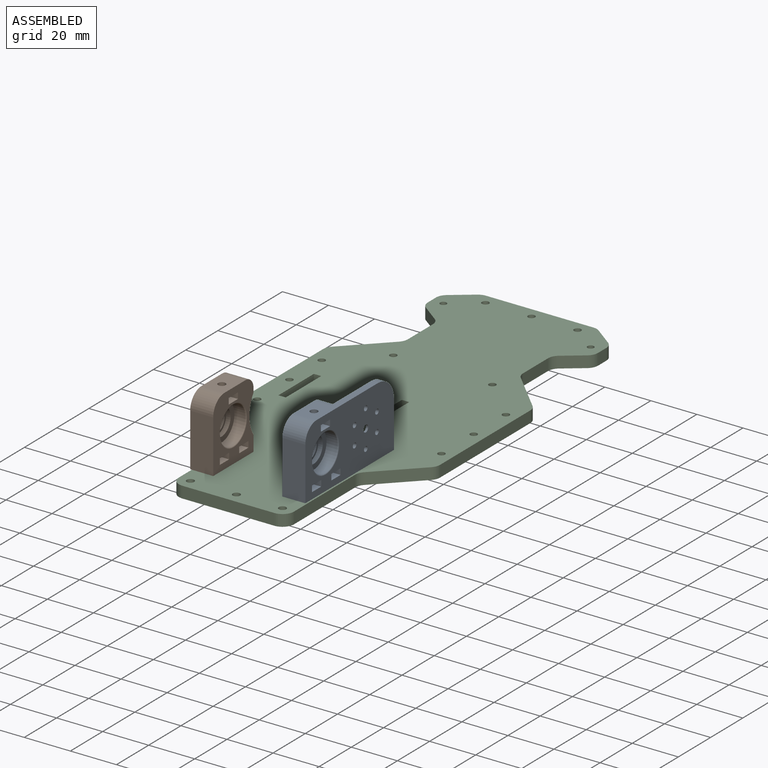
[diagram: assembled view]
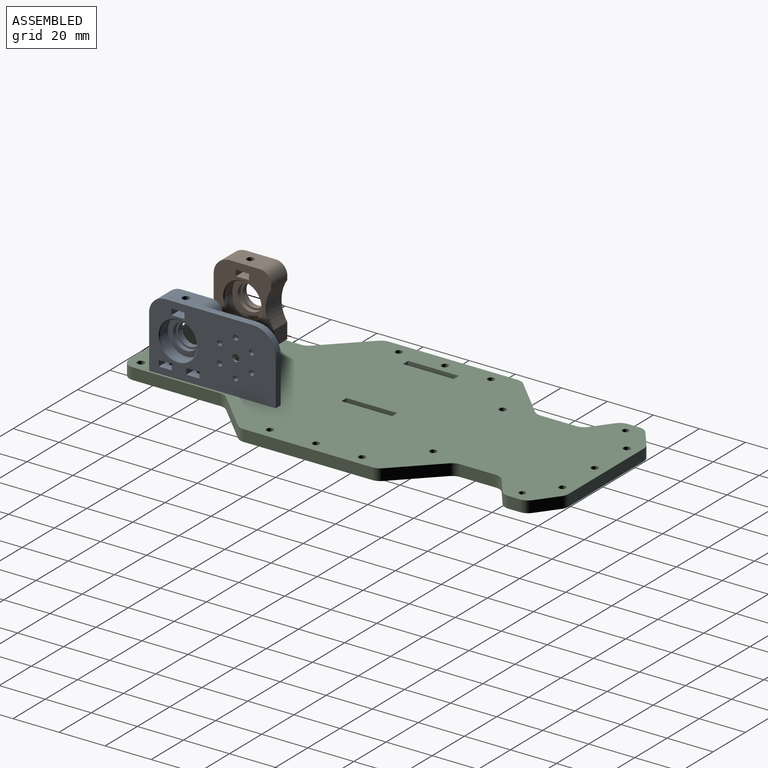
[diagram: assembled view, second angle]
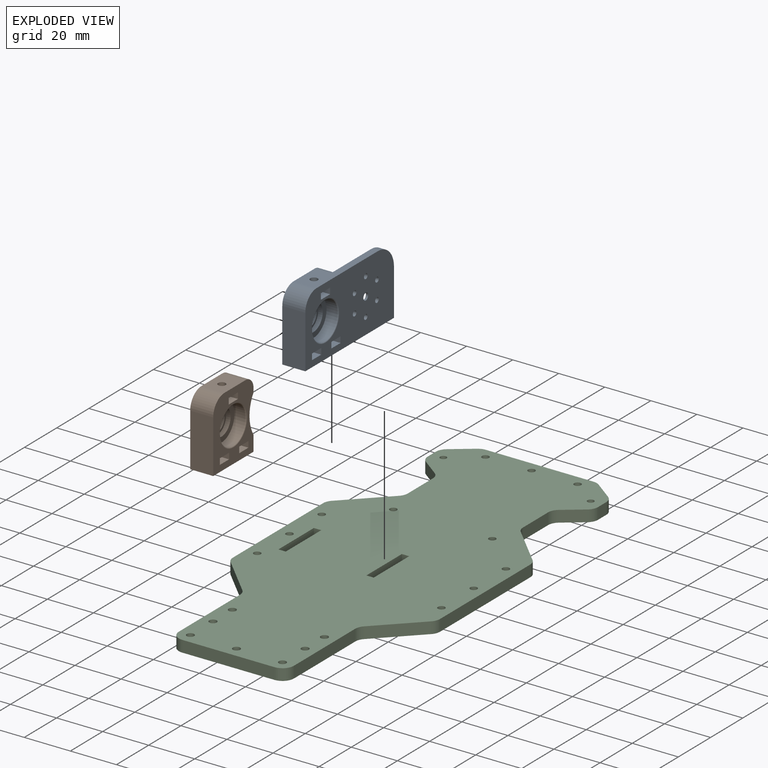
[diagram: exploded view]
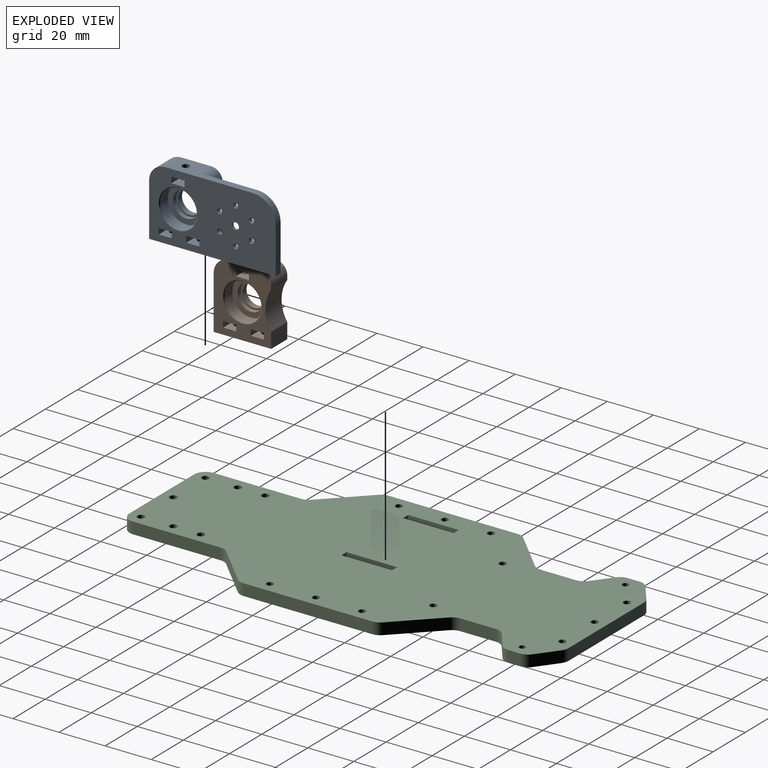
[diagram: exploded view, second angle]
ASSEMBLY  parts=3 mates=2
PART A: 55 faces, bbox 55x10x30 mm
  f0: plane 55x30mm, normal (0,-1,0), area 1314mm2, adj f3,f4,f5,f6,f9,f10,f11,f12
  f1: cylinder r=1.6mm len=3.2mm, axis (0,0,-1), area 28.1mm2, adj f5,f43
  f2: plane 35x30mm, normal (0,1,0), area 421.2mm2, adj f3,f4,f5,f15,f17,f20,f21,f22
  f3: plane 20x3mm, normal (1,0,0), area 60mm2, adj f0,f2,f5,f17
  f4: plane 38x10mm, normal (0,0,1), area 197mm2, adj f0,f2,f17,f23,f25,f26,f27
  f5: plane 55x10mm, normal (0,0,-1), area 323.9mm2, adj f0,f1,f2,f3,f18,f21,f23,f35
  f6: cylinder r=1.5mm len=3mm, axis (0,1,0), area 9.4mm2, adj f0,f8
  f7: cylinder r=3.4mm len=6.8mm, axis (0,1,0), area 21.4mm2, adj f8,f16
  f8: plane 6.8x6.8mm, normal (0,1,0), area 29.2mm2, adj f6,f7
  f9: cylinder r=1.1mm len=2.2mm, axis (0,1,0), area 13.8mm2, adj f0,f16
  f10: cylinder r=1.1mm len=2.2mm, axis (0,1,0), area 13.8mm2, adj f0,f16
  f11: cylinder r=1.1mm len=2.2mm, axis (0,1,0), area 13.8mm2, adj f0,f16
  f12: cylinder r=1.1mm len=2.2mm, axis (0,1,0), area 13.8mm2, adj f0,f16
  f13: cylinder r=1.1mm len=2.2mm, axis (0,1,0), area 13.8mm2, adj f0,f16
  f14: cylinder r=1.1mm len=2.2mm, axis (0,1,0), area 13.8mm2, adj f0,f16
  f15: cylinder r=12.5mm len=25mm, axis (0,1,0), area 78.5mm2, adj f2,f16
  f16: plane 25x25mm, normal (0,1,0), area 431.7mm2, adj f7,f9,f10,f11,f12,f13,f14,f15
  f17: cylinder r=10mm len=10mm, axis (0,-1,0), area 47.1mm2, adj f0,f2,f3,f4
  f18: plane 23x10mm, normal (-1,0,0), area 230mm2, adj f0,f5,f23,f26
  f19: cylinder r=8.05mm len=16.1mm, axis (0,1,0), area 237.7mm2, adj f24,f54
  f20: cylinder r=15mm len=16.58mm, axis (0,-1,0), area 123mm2, adj f2,f21,f22,f23
  f21: plane 7x6.71mm, normal (1,0,0), area 47mm2, adj f2,f5,f20,f23
  f22: plane 7x1.71mm, normal (1,0,0), area 12mm2, adj f2,f20,f23,f25
  f23: plane 30x25mm, normal (0,1,0), area 611.8mm2, adj f4,f5,f18,f20,f21,f22,f25,f26
  f24: plane 16.1x16.1mm, normal (0,-1,0), area 99.7mm2, adj f19,f50
  f25: cylinder r=5mm len=7mm, axis (0,-1,0), area 55mm2, adj f2,f4,f22,f23
  f26: cylinder r=7mm len=10mm, axis (0,1,0), area 110mm2, adj f0,f4,f18,f23
  f27: cylinder r=1.6mm len=3.2mm, axis (0,0,1), area 30.2mm2, adj f4,f29
  f28: plane 8.5x5.7mm, normal (0,0,1), area 40.4mm2, adj f0,f30,f31,f32,f34
  f29: plane 8.5x5.7mm, normal (0,0,-1), area 40.4mm2, adj f0,f27,f30,f31,f32
  f30: plane 8.5x2.6mm, normal (-1,0,0), area 22.1mm2, adj f0,f28,f29,f32
  f31: plane 8.5x2.6mm, normal (1,0,0), area 22.1mm2, adj f0,f28,f29,f32
  f32: plane 5.7x2.6mm, normal (0,-1,0), area 14.8mm2, adj f28,f29,f30,f31
  f33: plane 3.2x3.2mm, normal (0,0,1), area 8mm2, adj f34
  f34: cylinder r=1.6mm len=3.2mm, axis (0,0,1), area 4mm2, adj f28,f33
  f35: cylinder r=1.6mm len=3.2mm, axis (0,0,-1), area 28.1mm2, adj f5,f37
  f36: plane 9x5.7mm, normal (0,0,-1), area 43.3mm2, adj f0,f38,f39,f40,f42
  f37: plane 9x5.7mm, normal (0,0,1), area 43.3mm2, adj f0,f35,f38,f39,f40
  f38: plane 9x2.6mm, normal (1,0,0), area 23.4mm2, adj f0,f36,f37,f40
  f39: plane 9x2.6mm, normal (-1,0,0), area 23.4mm2, adj f0,f36,f37,f40
  f40: plane 5.7x2.6mm, normal (0,-1,0), area 14.8mm2, adj f36,f37,f38,f39
  f41: plane 3.2x3.2mm, normal (0,0,-1), area 8mm2, adj f42
  f42: cylinder r=1.6mm len=3.2mm, axis (0,0,-1), area 16.1mm2, adj f36,f41
  f43: plane 9x5.7mm, normal (0,0,1), area 43.3mm2, adj f0,f1,f45,f46,f47
  f44: plane 9x5.7mm, normal (0,0,-1), area 43.3mm2, adj f0,f45,f46,f47,f49
  f45: plane 9x2.6mm, normal (-1,0,0), area 23.4mm2, adj f0,f43,f44,f47
  f46: plane 9x2.6mm, normal (1,0,0), area 23.4mm2, adj f0,f43,f44,f47
  f47: plane 5.7x2.6mm, normal (0,-1,0), area 14.8mm2, adj f43,f44,f45,f46
  f48: plane 3.2x3.2mm, normal (0,0,-1), area 8mm2, adj f49
  f49: cylinder r=1.6mm len=3.2mm, axis (0,0,-1), area 16.1mm2, adj f44,f48
  f50: cylinder r=5.75mm len=11.5mm, axis (0,-1,0), area 72.3mm2, adj f24,f51
  f51: plane 11.5x11.5mm, normal (0,-1,0), area 26.1mm2, adj f50,f52
  f52: cylinder r=4.98mm len=9.95mm, axis (0,1,0), area 71.9mm2, adj f51,f53
  f53: torus R=5.47mm, axis (0,1,0), area 25.4mm2, adj f23,f52
  f54: torus R=8.55mm, axis (0,-1,0), area 40.6mm2, adj f0,f19
PART B: 41 faces, bbox 25x10x30 mm
  f0: plane 30x25mm, normal (0,-1,0), area 431.9mm2, adj f2,f3,f4,f6,f7,f8,f11,f12
  f1: cylinder r=1.6mm len=3.2mm, axis (0,0,-1), area 28.1mm2, adj f3,f29
  f2: plane 13x10mm, normal (0,0,1), area 122mm2, adj f0,f9,f11,f12,f13
  f3: plane 25x10mm, normal (0,0,-1), area 233.9mm2, adj f0,f1,f4,f7,f9,f21
  f4: plane 23x10mm, normal (-1,0,0), area 230mm2, adj f0,f3,f9,f12
  f5: cylinder r=8.05mm len=16.1mm, axis (0,1,0), area 237.7mm2, adj f10,f40
  f6: cylinder r=15mm len=16.58mm, axis (0,-1,0), area 175.7mm2, adj f0,f7,f8,f9
  f7: plane 10x6.71mm, normal (1,0,0), area 67.1mm2, adj f0,f3,f6,f9
  f8: plane 10x1.71mm, normal (1,0,0), area 17.1mm2, adj f0,f6,f9,f11
  f9: plane 30x25mm, normal (0,1,0), area 611.8mm2, adj f2,f3,f4,f6,f7,f8,f11,f12
  f10: plane 16.1x16.1mm, normal (0,-1,0), area 99.7mm2, adj f5,f36
  f11: cylinder r=5mm len=10mm, axis (0,-1,0), area 78.5mm2, adj f0,f2,f8,f9
  f12: cylinder r=7mm len=10mm, axis (0,1,0), area 110mm2, adj f0,f2,f4,f9
  f13: cylinder r=1.6mm len=3.2mm, axis (0,0,1), area 30.2mm2, adj f2,f15
  f14: plane 8.5x5.7mm, normal (0,0,1), area 40.4mm2, adj f0,f16,f17,f18,f20
  f15: plane 8.5x5.7mm, normal (0,0,-1), area 40.4mm2, adj f0,f13,f16,f17,f18
  f16: plane 8.5x2.6mm, normal (-1,0,0), area 22.1mm2, adj f0,f14,f15,f18
  f17: plane 8.5x2.6mm, normal (1,0,0), area 22.1mm2, adj f0,f14,f15,f18
  f18: plane 5.7x2.6mm, normal (0,-1,0), area 14.8mm2, adj f14,f15,f16,f17
  f19: plane 3.2x3.2mm, normal (0,0,1), area 8mm2, adj f20
  f20: cylinder r=1.6mm len=3.2mm, axis (0,0,1), area 4mm2, adj f14,f19
  f21: cylinder r=1.6mm len=3.2mm, axis (0,0,-1), area 28.1mm2, adj f3,f23
  f22: plane 9x5.7mm, normal (0,0,-1), area 43.3mm2, adj f0,f24,f25,f26,f28
  f23: plane 9x5.7mm, normal (0,0,1), area 43.3mm2, adj f0,f21,f24,f25,f26
  f24: plane 9x2.6mm, normal (1,0,0), area 23.4mm2, adj f0,f22,f23,f26
  f25: plane 9x2.6mm, normal (-1,0,0), area 23.4mm2, adj f0,f22,f23,f26
  f26: plane 5.7x2.6mm, normal (0,-1,0), area 14.8mm2, adj f22,f23,f24,f25
  f27: plane 3.2x3.2mm, normal (0,0,-1), area 8mm2, adj f28
  f28: cylinder r=1.6mm len=3.2mm, axis (0,0,-1), area 16.1mm2, adj f22,f27
  f29: plane 9x5.7mm, normal (0,0,1), area 43.3mm2, adj f0,f1,f31,f32,f33
  f30: plane 9x5.7mm, normal (0,0,-1), area 43.3mm2, adj f0,f31,f32,f33,f35
  f31: plane 9x2.6mm, normal (-1,0,0), area 23.4mm2, adj f0,f29,f30,f33
  f32: plane 9x2.6mm, normal (1,0,0), area 23.4mm2, adj f0,f29,f30,f33
  f33: plane 5.7x2.6mm, normal (0,-1,0), area 14.8mm2, adj f29,f30,f31,f32
  f34: plane 3.2x3.2mm, normal (0,0,-1), area 8mm2, adj f35
  f35: cylinder r=1.6mm len=3.2mm, axis (0,0,-1), area 16.1mm2, adj f30,f34
  f36: cylinder r=5.75mm len=11.5mm, axis (0,-1,0), area 72.3mm2, adj f10,f37
  f37: plane 11.5x11.5mm, normal (0,-1,0), area 26.1mm2, adj f36,f38
  f38: cylinder r=4.98mm len=9.95mm, axis (0,1,0), area 71.9mm2, adj f37,f39
  f39: torus R=5.47mm, axis (0,1,0), area 25.4mm2, adj f9,f38
  f40: torus R=8.55mm, axis (0,-1,0), area 40.6mm2, adj f0,f5
PART C: 66 faces, bbox 90x193x5 mm
  f0: plane 22x5mm, normal (1,0,0), area 110mm2, adj f1,f63,f64,f65
  f1: plane 5x3.2mm, normal (0,-1,0), area 16mm2, adj f0,f2,f64,f65
  f2: plane 22x5mm, normal (-1,0,0), area 110mm2, adj f1,f63,f64,f65
  f3: cylinder r=5mm len=5mm, axis (0,0,-1), area 19.6mm2, adj f4,f61,f64,f65
  f4: plane 17.07x17.07mm, normal (0.71,-0.71,0), area 120.7mm2, adj f3,f5,f64,f65
  f5: cylinder r=5mm len=5mm, axis (0,0,-1), area 19.6mm2, adj f4,f6,f64,f65
  f6: plane 55.86x5mm, normal (1,0,0), area 279.3mm2, adj f5,f7,f64,f65
  f7: cylinder r=5mm len=5mm, axis (0,0,-1), area 19.6mm2, adj f6,f8,f64,f65
  f8: plane 17.07x17.07mm, normal (0.71,0.71,0), area 120.7mm2, adj f7,f9,f64,f65
  f9: cylinder r=5mm len=5mm, axis (0,0,-1), area 19.6mm2, adj f8,f10,f64,f65
  f10: plane 15.43x5mm, normal (1,0,0), area 77.1mm2, adj f9,f11,f64,f65
  f11: cylinder r=5mm len=5mm, axis (0,0,-1), area 23.2mm2, adj f10,f12,f64,f65
  f12: plane 8x6mm, normal (0.6,-0.8,0), area 50mm2, adj f11,f13,f64,f65
  f13: cylinder r=5mm len=5mm, axis (0,0,-1), area 23.2mm2, adj f12,f14,f64,f65
  f14: plane 5x5mm, normal (1,0,0), area 25mm2, adj f13,f15,f64,f65
  f15: cylinder r=5mm len=5mm, axis (0,0,-1), area 23.2mm2, adj f14,f16,f64,f65
  f16: plane 8.67x6.5mm, normal (0.6,0.8,0), area 54.2mm2, adj f15,f17,f64,f65
  f17: cylinder r=5mm len=5mm, axis (0,0,-1), area 16.1mm2, adj f16,f18,f64,f65
  f18: plane 46.67x5mm, normal (0,1,0), area 233.3mm2, adj f17,f19,f64,f65
  f19: cylinder r=5mm len=5mm, axis (0,0,-1), area 16.1mm2, adj f18,f20,f64,f65
  f20: plane 8.67x6.5mm, normal (-0.6,0.8,0), area 54.2mm2, adj f19,f21,f64,f65
  f21: cylinder r=5mm len=5mm, axis (0,0,-1), area 23.2mm2, adj f20,f22,f64,f65
  f22: plane 5x5mm, normal (-1,0,0), area 25mm2, adj f21,f23,f64,f65
  f23: cylinder r=5mm len=5mm, axis (0,0,-1), area 23.2mm2, adj f22,f24,f64,f65
  f24: plane 8x6mm, normal (-0.6,-0.8,0), area 50mm2, adj f23,f25,f64,f65
  f25: cylinder r=5mm len=5mm, axis (0,0,-1), area 23.2mm2, adj f24,f26,f64,f65
  f26: plane 15.43x5mm, normal (-1,0,0), area 77.1mm2, adj f25,f27,f64,f65
  f27: cylinder r=5mm len=5mm, axis (0,0,-1), area 19.6mm2, adj f26,f28,f64,f65
  f28: plane 17.07x17.07mm, normal (-0.71,0.71,0), area 120.7mm2, adj f27,f29,f64,f65
  f29: cylinder r=5mm len=5mm, axis (0,0,-1), area 19.6mm2, adj f28,f30,f64,f65
  f30: plane 55.86x5mm, normal (-1,0,0), area 279.3mm2, adj f29,f31,f64,f65
  f31: cylinder r=5mm len=5mm, axis (0,0,-1), area 19.6mm2, adj f30,f32,f64,f65
  f32: plane 17.07x17.07mm, normal (-0.71,-0.71,0), area 120.7mm2, adj f31,f33,f64,f65
  f33: cylinder r=5mm len=5mm, axis (0,0,-1), area 19.6mm2, adj f32,f34,f64,f65
  f34: plane 37.93x5mm, normal (-1,0,0), area 189.6mm2, adj f33,f35,f64,f65
  f35: cylinder r=5mm len=5mm, axis (0,0,-1), area 39.3mm2, adj f34,f36,f64,f65
  f36: plane 40x5mm, normal (0,-1,0), area 200mm2, adj f35,f37,f64,f65
  f37: cylinder r=5mm len=5mm, axis (0,0,-1), area 39.3mm2, adj f36,f61,f64,f65
  f38: plane 22x5mm, normal (1,0,0), area 110mm2, adj f39,f62,f64,f65
  f39: plane 5x3.2mm, normal (0,-1,0), area 16mm2, adj f38,f40,f64,f65
  f40: plane 22x5mm, normal (-1,0,0), area 110mm2, adj f39,f62,f64,f65
  f41: cylinder r=1.6mm len=5mm, axis (0,0,-1), area 50.3mm2, adj f64,f65
  f42: cylinder r=1.5mm len=5mm, axis (0,0,-1), area 47.1mm2, adj f64,f65
  f43: cylinder r=1.5mm len=5mm, axis (0,0,-1), area 47.1mm2, adj f64,f65
  f44: cylinder r=1.5mm len=5mm, axis (0,0,-1), area 47.1mm2, adj f64,f65
  f45: cylinder r=1.5mm len=5mm, axis (0,0,-1), area 47.1mm2, adj f64,f65
  f46: cylinder r=1.5mm len=5mm, axis (0,0,-1), area 47.1mm2, adj f64,f65
  f47: cylinder r=1.5mm len=5mm, axis (0,0,-1), area 47.1mm2, adj f64,f65
  f48: cylinder r=1.5mm len=5mm, axis (0,0,-1), area 47.1mm2, adj f64,f65
  f49: cylinder r=1.38mm len=5mm, axis (0,0,-1), area 43.2mm2, adj f64,f65
  f50: cylinder r=1.5mm len=5mm, axis (0,0,-1), area 47.1mm2, adj f64,f65
  f51: cylinder r=1.5mm len=5mm, axis (0,0,-1), area 47.1mm2, adj f64,f65
  f52: cylinder r=1.5mm len=5mm, axis (0,0,-1), area 47.1mm2, adj f64,f65
  f53: cylinder r=1.5mm len=5mm, axis (0,0,-1), area 47.1mm2, adj f64,f65
  f54: cylinder r=1.38mm len=5mm, axis (0,0,-1), area 43.2mm2, adj f64,f65
  f55: cylinder r=1.6mm len=5mm, axis (0,0,-1), area 50.3mm2, adj f64,f65
  f56: cylinder r=1.6mm len=5mm, axis (0,0,-1), area 50.3mm2, adj f64,f65
  f57: cylinder r=1.6mm len=5mm, axis (0,0,-1), area 50.3mm2, adj f64,f65
  f58: cylinder r=1.6mm len=5mm, axis (0,0,-1), area 50.3mm2, adj f64,f65
  f59: cylinder r=1.6mm len=5mm, axis (0,0,-1), area 50.3mm2, adj f64,f65
  f60: cylinder r=1.6mm len=5mm, axis (0,0,-1), area 50.3mm2, adj f64,f65
  f61: plane 37.93x5mm, normal (1,0,0), area 189.6mm2, adj f3,f37,f64,f65
  f62: plane 5x3.2mm, normal (0,1,0), area 16mm2, adj f38,f40,f64,f65
  f63: plane 5x3.2mm, normal (0,1,0), area 16mm2, adj f0,f2,f64,f65
  f64: plane 193x90mm, normal (0,0,1), area 13006.1mm2, adj f0,f1,f2,f3,f4,f5,f6,f7
  f65: plane 193x90mm, normal (0,0,-1), area 13006.1mm2, adj f0,f1,f2,f3,f4,f5,f6,f7
PLACE A rot(axis=(0,0,1),90deg) t=(51.14,-45.51,69.25)mm
PLACE B rot(axis=(0,0,1),90deg) t=(11.14,-45.51,69.25)mm
PLACE C t=(29.14,-2.01,48.68)mm
MATE cylindrical B.f21 <-> C.f55  axis (0,0,-1) through (9.14,-76.01,54.25)mm
MATE cylindrical A.f35 <-> C.f59  axis (0,0,-1) through (49.14,-76.01,54.25)mm
